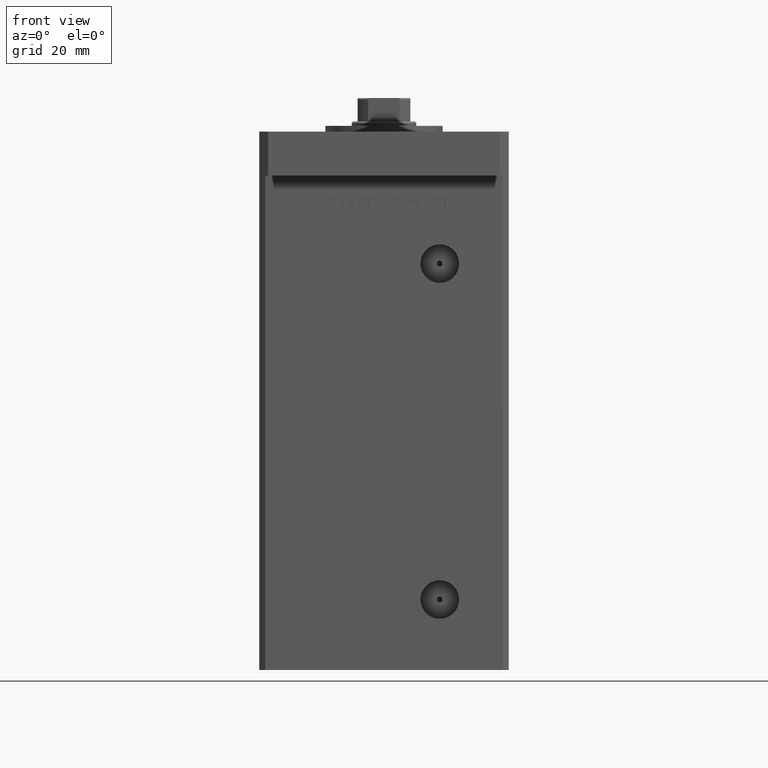
[diagram: clean part render]
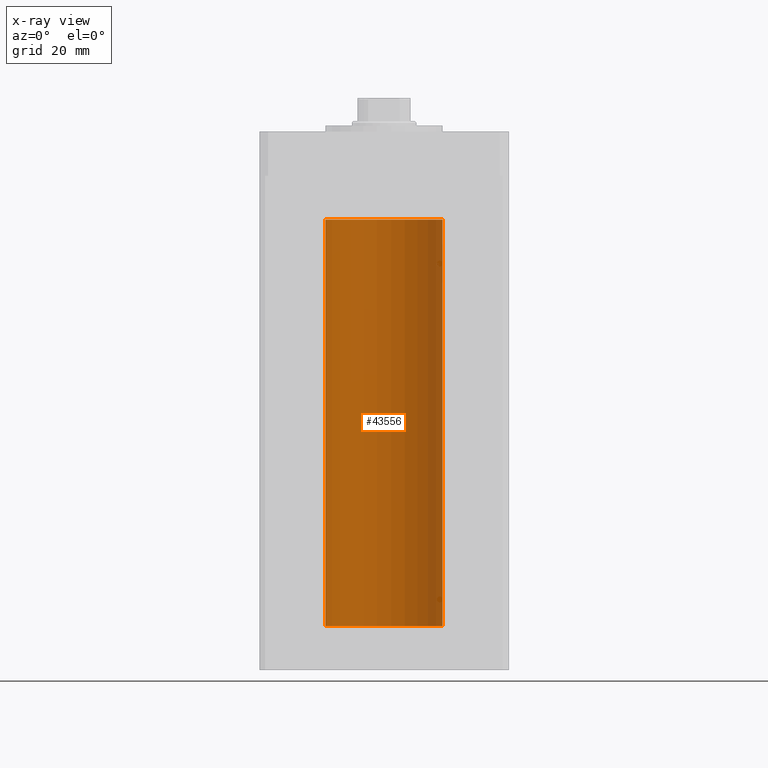
[diagram: x-ray — body ghosted, one internal face saturated and labeled with its STEP entity id]
A machine part, front view, then the same camera in x-ray: the body is ghosted and one INTERNAL B-rep face — a face not visible from any outside direction — is saturated and labeled: STEP entity #43556.
In plain terms, the highlighted cylindrical surface (partial cylindrical patch) has radius 20 mm, axis along (-0, -0, -1).
Its self-contained STEP definition (entity closure, byte-faithful):
#269 = CARTESIAN_POINT ( 'NONE',  ( -20.00000000000000000, 0.000000000000000000, 0.000000000000000000 ) ) ;
#738 = DIRECTION ( 'NONE',  ( -1.000000000000000000, 0.000000000000000000, 0.000000000000000000 ) ) ;
#2975 = VERTEX_POINT ( 'NONE', #22180 ) ;
#3383 = LINE ( 'NONE', #28916, #49123 ) ;
#4255 = FACE_OUTER_BOUND ( 'NONE', #18875, .T. ) ;
#7490 = CARTESIAN_POINT ( 'NONE',  ( 20.00000000000000000, 2.449293598294706513E-15, 138.5000000000000000 ) ) ;
#7718 = ORIENTED_EDGE ( 'NONE', *, *, #33010, .F. ) ;
#10096 = CARTESIAN_POINT ( 'NONE',  ( 20.00000000000000000, 2.449293598294706513E-15, 138.5000000000000000 ) ) ;
#11044 = DIRECTION ( 'NONE',  ( -0.000000000000000000, 0.000000000000000000, 1.000000000000000000 ) ) ;
#12044 = AXIS2_PLACEMENT_3D ( 'NONE', #17037, #46301, #738 ) ;
#15646 = DIRECTION ( 'NONE',  ( -0.000000000000000000, -0.000000000000000000, -1.000000000000000000 ) ) ;
#15835 = CARTESIAN_POINT ( 'NONE',  ( 20.00000000000000000, 2.449293598294706513E-15, 0.000000000000000000 ) ) ;
#17037 = CARTESIAN_POINT ( 'NONE',  ( 0.000000000000000000, 0.000000000000000000, 138.5000000000000000 ) ) ;
#17557 = CYLINDRICAL_SURFACE ( 'NONE', #12044, 20.00000000000000000 ) ;
#18875 = EDGE_LOOP ( 'NONE', ( #21826, #40127, #39322, #7718 ) ) ;
#19654 = VERTEX_POINT ( 'NONE', #269 ) ;
#21826 = ORIENTED_EDGE ( 'NONE', *, *, #47227, .F. ) ;
#21846 = EDGE_CURVE ( 'NONE', #50683, #2975, #33506, .T. ) ;
#22180 = CARTESIAN_POINT ( 'NONE',  ( -20.00000000000000000, 0.000000000000000000, 138.5000000000000000 ) ) ;
#23129 = EDGE_CURVE ( 'NONE', #2975, #19654, #3383, .T. ) ;
#24323 = VECTOR ( 'NONE', #15646, 1000.000000000000000 ) ;
#28916 = CARTESIAN_POINT ( 'NONE',  ( -20.00000000000000000, 0.000000000000000000, 138.5000000000000000 ) ) ;
#32711 = DIRECTION ( 'NONE',  ( -0.000000000000000000, -0.000000000000000000, -1.000000000000000000 ) ) ;
#33010 = EDGE_CURVE ( 'NONE', #34470, #19654, #43171, .T. ) ;
#33034 = DIRECTION ( 'NONE',  ( 1.000000000000000000, 0.000000000000000000, 0.000000000000000000 ) ) ;
#33506 = CIRCLE ( 'NONE', #39519, 20.00000000000000000 ) ;
#34470 = VERTEX_POINT ( 'NONE', #15835 ) ;
#39322 = ORIENTED_EDGE ( 'NONE', *, *, #23129, .T. ) ;
#39519 = AXIS2_PLACEMENT_3D ( 'NONE', #48202, #11044, #33034 ) ;
#40127 = ORIENTED_EDGE ( 'NONE', *, *, #21846, .T. ) ;
#40638 = CARTESIAN_POINT ( 'NONE',  ( 0.000000000000000000, 0.000000000000000000, 0.000000000000000000 ) ) ;
#43171 = CIRCLE ( 'NONE', #45786, 20.00000000000000000 ) ;
#43556 = ADVANCED_FACE ( 'NONE', ( #4255 ), #17557, .F. ) ;
#44394 = LINE ( 'NONE', #7490, #24323 ) ;
#44706 = DIRECTION ( 'NONE',  ( 1.000000000000000000, 0.000000000000000000, 0.000000000000000000 ) ) ;
#45786 = AXIS2_PLACEMENT_3D ( 'NONE', #40638, #49042, #44706 ) ;
#46301 = DIRECTION ( 'NONE',  ( -0.000000000000000000, -0.000000000000000000, -1.000000000000000000 ) ) ;
#47227 = EDGE_CURVE ( 'NONE', #50683, #34470, #44394, .T. ) ;
#48202 = CARTESIAN_POINT ( 'NONE',  ( 0.000000000000000000, 0.000000000000000000, 138.5000000000000000 ) ) ;
#49042 = DIRECTION ( 'NONE',  ( -0.000000000000000000, 0.000000000000000000, 1.000000000000000000 ) ) ;
#49123 = VECTOR ( 'NONE', #32711, 1000.000000000000000 ) ;
#50683 = VERTEX_POINT ( 'NONE', #10096 ) ;